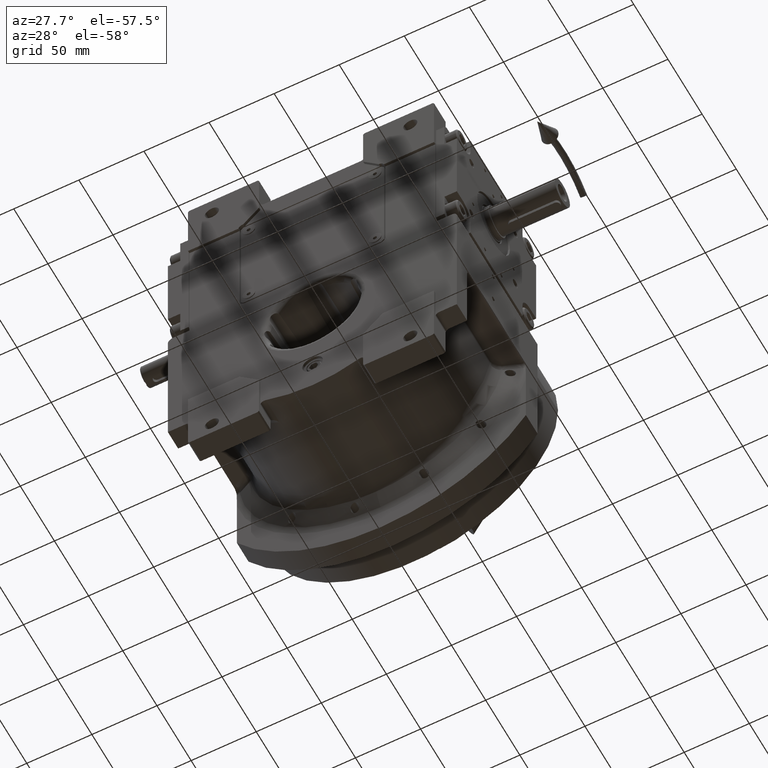
[diagram: clean part render]
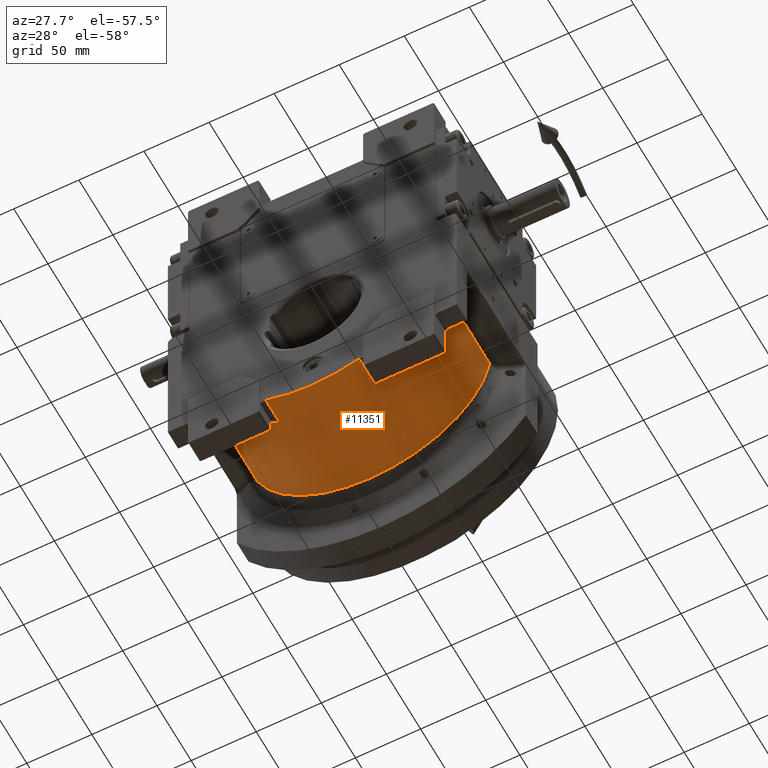
[diagram: same view with one face highlighted and labeled with its STEP entity id]
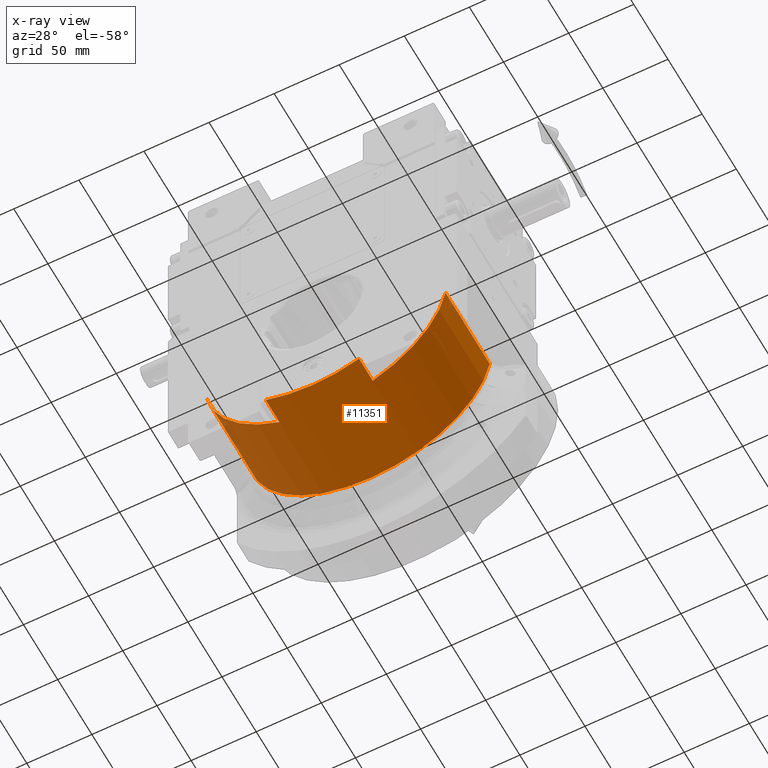
[diagram: x-ray of the same camera — body ghosted, the highlighted face saturated]
A machine part, auxiliary view. The second image highlights one B-rep face of the part: STEP entity #11351.
The next image is the same camera in x-ray: the body ghosted, the highlighted face saturated — about 2% of this face is hidden behind the body in this view.
In plain terms, the highlighted cylindrical surface (partial cylindrical patch) has radius 93 mm, axis along (0, 1, 0).
Its self-contained STEP definition (entity closure, byte-faithful):
#635 = VECTOR ( 'NONE', #51164, 1000.000000000000000 ) ;
#1354 = CARTESIAN_POINT ( 'NONE',  ( 91.75016228501930016, 31.21878281274199907, -15.19564808333685058 ) ) ;
#1632 = DIRECTION ( 'NONE',  ( 0.9865608847878558629, 0.000000000000000000, -0.1633940653959109757 ) ) ;
#2087 = ORIENTED_EDGE ( 'NONE', *, *, #46109, .T. ) ;
#3432 = VECTOR ( 'NONE', #16006, 1000.000000000000000 ) ;
#3686 = CIRCLE ( 'NONE', #61884, 93.00000000000001421 ) ;
#4467 = DIRECTION ( 'NONE',  ( -0.3854166666666659080, 0.000000000000000000, -0.9227426472508768462 ) ) ;
#4927 = VECTOR ( 'NONE', #42925, 1000.000000000000000 ) ;
#5534 = ORIENTED_EDGE ( 'NONE', *, *, #60241, .T. ) ;
#6091 = CARTESIAN_POINT ( 'NONE',  ( 1.421085471520200056E-14, -33.50000000000000000, 1.421085471520200056E-14 ) ) ;
#8245 = CIRCLE ( 'NONE', #63178, 92.99999999999995737 ) ;
#8715 = VERTEX_POINT ( 'NONE', #65846 ) ;
#9609 = DIRECTION ( 'NONE',  ( 0.000000000000000000, 1.000000000000000000, 0.000000000000000000 ) ) ;
#9931 = CARTESIAN_POINT ( 'NONE',  ( -4.517455316885850268E-28, -53.50000000000000000, 0.000000000000000000 ) ) ;
#10146 = ORIENTED_EDGE ( 'NONE', *, *, #60399, .F. ) ;
#10907 = CARTESIAN_POINT ( 'NONE',  ( -35.84375000000000000, -53.50000000000000000, -85.81506619433150718 ) ) ;
#11338 = CARTESIAN_POINT ( 'NONE',  ( -5.684341886080798963E-14, -33.50000000000000000, -4.973799150320699408E-14 ) ) ;
#11351 = ADVANCED_FACE ( 'NONE', ( #37437 ), #36768, .T. ) ;
#11876 = VERTEX_POINT ( 'NONE', #60646 ) ;
#14675 = LINE ( 'NONE', #20843, #635 ) ;
#16006 = DIRECTION ( 'NONE',  ( 0.000000000000000000, -1.000000000000000000, 0.000000000000000000 ) ) ;
#17279 = CIRCLE ( 'NONE', #64475, 93.00000000000001421 ) ;
#18468 = ORIENTED_EDGE ( 'NONE', *, *, #45349, .T. ) ;
#20701 = CARTESIAN_POINT ( 'NONE',  ( 35.84375000000000000, -53.50000000000000000, -85.81506619433150718 ) ) ;
#20843 = CARTESIAN_POINT ( 'NONE',  ( -91.75016228501930016, -33.50000000000000000, -15.19564808333695183 ) ) ;
#21287 = VERTEX_POINT ( 'NONE', #20701 ) ;
#21494 = CARTESIAN_POINT ( 'NONE',  ( 1.421085471520200056E-14, 31.21878281274215183, 0.000000000000000000 ) ) ;
#22394 = DIRECTION ( 'NONE',  ( 0.000000000000000000, -1.000000000000000000, 0.000000000000000000 ) ) ;
#23687 = DIRECTION ( 'NONE',  ( -0.3854166666666672403, 0.000000000000000000, -0.9227426472508764022 ) ) ;
#24029 = CARTESIAN_POINT ( 'NONE',  ( 1.421085471520200056E-14, -53.50000000000000000, -4.263256414560599853E-14 ) ) ;
#24232 = CIRCLE ( 'NONE', #57140, 93.00000000000001421 ) ;
#24552 = EDGE_CURVE ( 'NONE', #42213, #60438, #17279, .T. ) ;
#25036 = CARTESIAN_POINT ( 'NONE',  ( -91.75030103113060420, 31.21878279875124917, -15.19503959111690072 ) ) ;
#27135 = CARTESIAN_POINT ( 'NONE',  ( -35.84375000000000000, -53.50000000000000000, -85.81506619433150718 ) ) ;
#28266 = EDGE_CURVE ( 'NONE', #30725, #11876, #24232, .T. ) ;
#28510 = DIRECTION ( 'NONE',  ( 0.000000000000000000, -1.000000000000000000, 0.000000000000000000 ) ) ;
#29627 = EDGE_CURVE ( 'NONE', #11876, #21287, #42149, .T. ) ;
#29921 = CARTESIAN_POINT ( 'NONE',  ( -91.75016228508779648, -33.50000000000000000, -15.19564808292360070 ) ) ;
#30609 = DIRECTION ( 'NONE',  ( 0.000000000000000000, 0.000000000000000000, 1.000000000000000000 ) ) ;
#30725 = VERTEX_POINT ( 'NONE', #38972 ) ;
#32265 = LINE ( 'NONE', #27135, #4927 ) ;
#32274 = EDGE_CURVE ( 'NONE', #8715, #57387, #3686, .T. ) ;
#32590 = ORIENTED_EDGE ( 'NONE', *, *, #32274, .T. ) ;
#36475 = DIRECTION ( 'NONE',  ( 0.000000000000000000, 1.000000000000000000, 0.000000000000000000 ) ) ;
#36768 = CYLINDRICAL_SURFACE ( 'NONE', #54408, 93.00000000000000000 ) ;
#36939 = VECTOR ( 'NONE', #22394, 1000.000000000000000 ) ;
#36978 = CARTESIAN_POINT ( 'NONE',  ( 35.84375000000000000, -33.50000000000000000, -85.81506619433150718 ) ) ;
#37306 = EDGE_LOOP ( 'NONE', ( #10146, #5534, #32590, #18468, #64226, #2087, #45305, #51877 ) ) ;
#37310 = CARTESIAN_POINT ( 'NONE',  ( 91.75016228501930016, 31.21878281274259948, -15.19564808333685058 ) ) ;
#37437 = FACE_OUTER_BOUND ( 'NONE', #37306, .T. ) ;
#38972 = CARTESIAN_POINT ( 'NONE',  ( 91.75016228514499517, -33.50000000000000000, -15.19564808257825028 ) ) ;
#39176 = DIRECTION ( 'NONE',  ( 0.000000000000000000, 1.000000000000000000, 0.000000000000000000 ) ) ;
#42149 = LINE ( 'NONE', #36978, #3432 ) ;
#42213 = VERTEX_POINT ( 'NONE', #37310 ) ;
#42925 = DIRECTION ( 'NONE',  ( 1.776356839400250070E-15, 1.000000000000000000, -7.105427357601000281E-16 ) ) ;
#45305 = ORIENTED_EDGE ( 'NONE', *, *, #28266, .T. ) ;
#45349 = EDGE_CURVE ( 'NONE', #57387, #60438, #14675, .T. ) ;
#46109 = EDGE_CURVE ( 'NONE', #42213, #30725, #48522, .T. ) ;
#48522 = LINE ( 'NONE', #1354, #36939 ) ;
#51164 = DIRECTION ( 'NONE',  ( 0.000000000000000000, 1.000000000000000000, 0.000000000000000000 ) ) ;
#51877 = ORIENTED_EDGE ( 'NONE', *, *, #29627, .T. ) ;
#54149 = DIRECTION ( 'NONE',  ( 0.9865608847851539132, -1.678764654171103455E-15, -0.1633940654122239822 ) ) ;
#54408 = AXIS2_PLACEMENT_3D ( 'NONE', #9931, #9609, #30609 ) ;
#57140 = AXIS2_PLACEMENT_3D ( 'NONE', #6091, #39176, #1632 ) ;
#57387 = VERTEX_POINT ( 'NONE', #29921 ) ;
#60241 = EDGE_CURVE ( 'NONE', #67474, #8715, #32265, .T. ) ;
#60399 = EDGE_CURVE ( 'NONE', #67474, #21287, #8245, .T. ) ;
#60438 = VERTEX_POINT ( 'NONE', #25036 ) ;
#60646 = CARTESIAN_POINT ( 'NONE',  ( 35.84375000000000000, -33.50000000000000000, -85.81506619433150718 ) ) ;
#61884 = AXIS2_PLACEMENT_3D ( 'NONE', #11338, #36475, #4467 ) ;
#63178 = AXIS2_PLACEMENT_3D ( 'NONE', #24029, #28510, #23687 ) ;
#64226 = ORIENTED_EDGE ( 'NONE', *, *, #24552, .F. ) ;
#64468 = DIRECTION ( 'NONE',  ( 5.743225055535190204E-15, 1.000000000000000000, 2.439003765979129920E-14 ) ) ;
#64475 = AXIS2_PLACEMENT_3D ( 'NONE', #21494, #64468, #54149 ) ;
#65846 = CARTESIAN_POINT ( 'NONE',  ( -35.84375000000000000, -33.50000000000000000, -85.81506619433150718 ) ) ;
#67474 = VERTEX_POINT ( 'NONE', #10907 ) ;